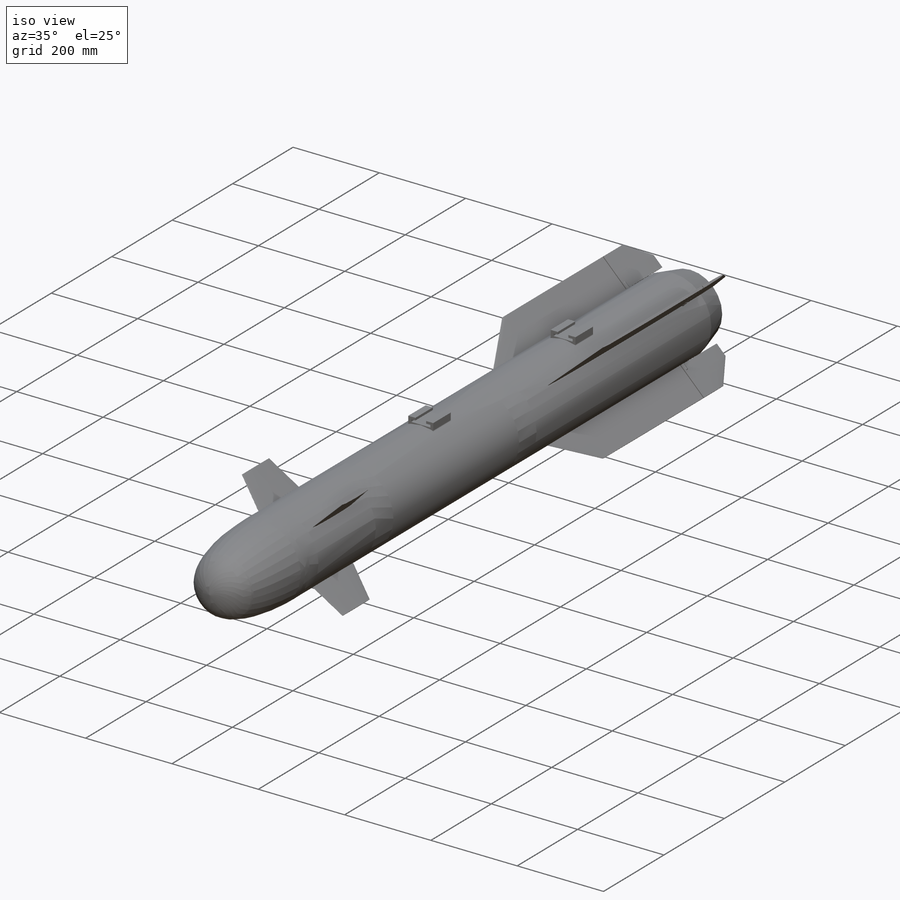
[diagram: iso view]
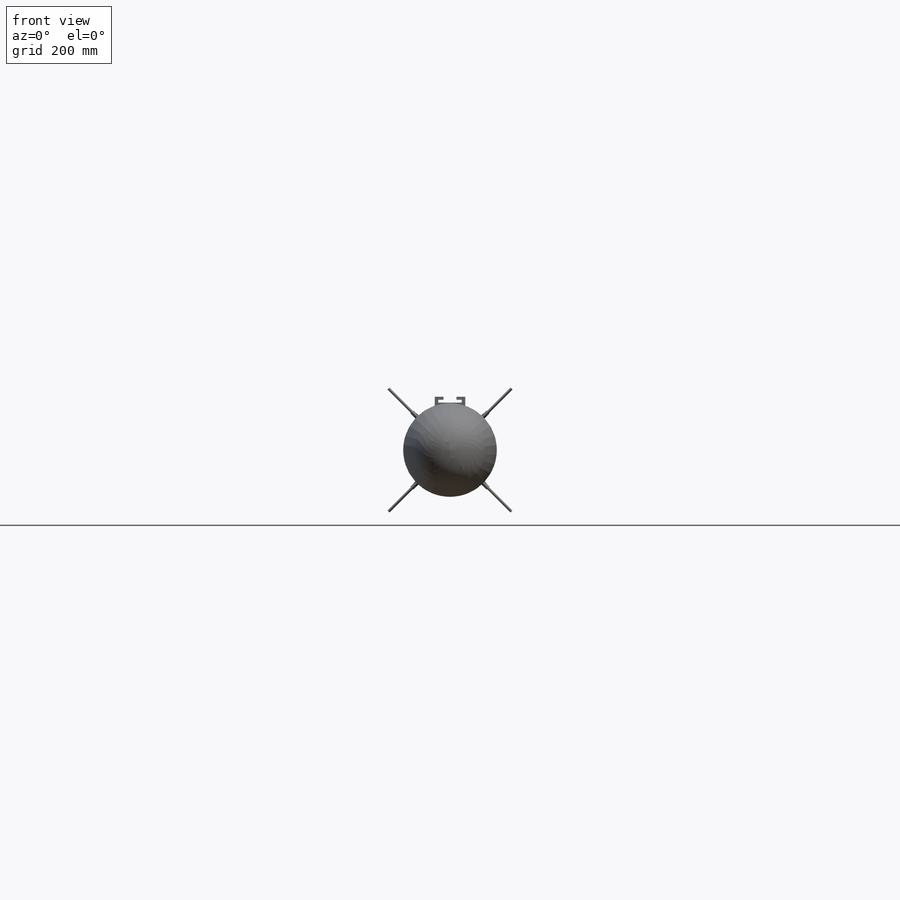
[diagram: front view]
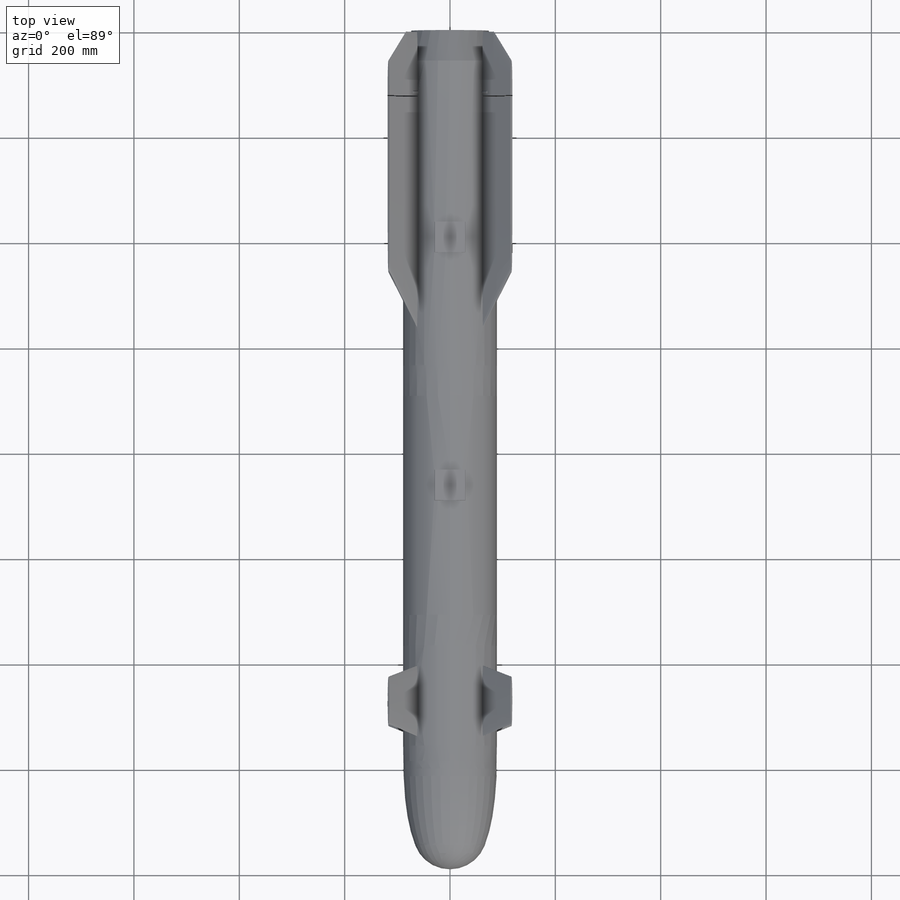
[diagram: top view]
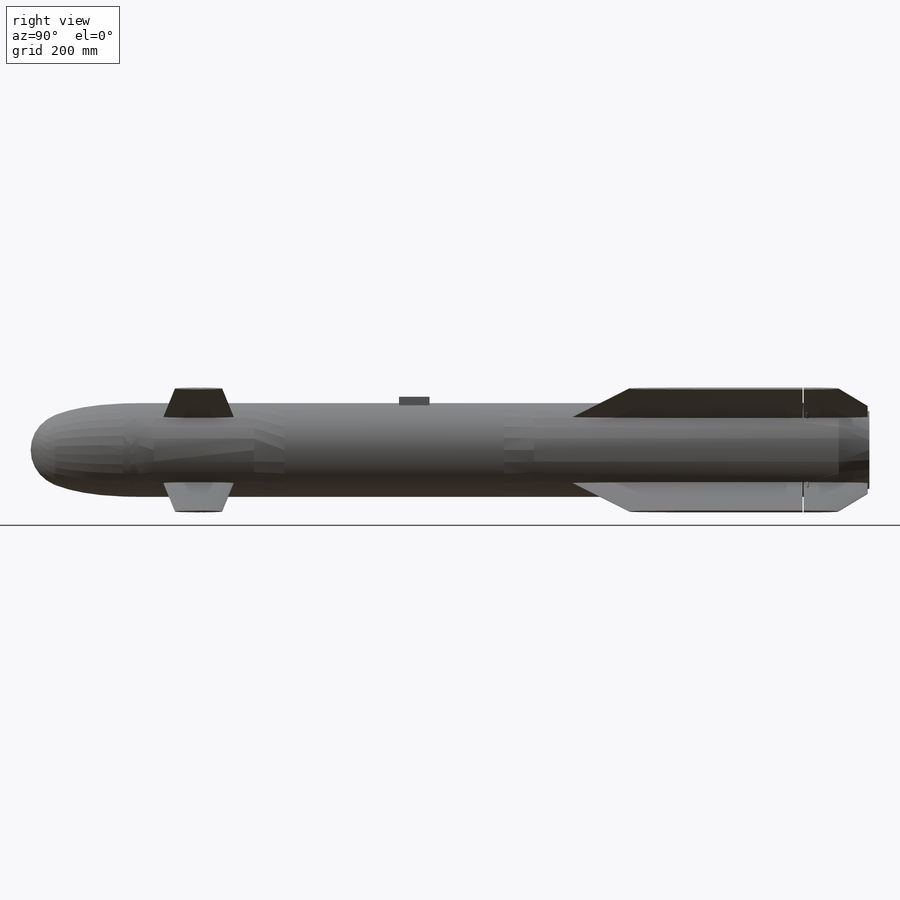
[diagram: right view]
SOLIDWORKS PART (.sldprt)
format: sldprt  version: not decoded by parser v0  size: 1,519,104 bytes
history: native  units: mm
features: sketch x21, plane x5, extrude x3, fillet x3, revolve x2, pattern_circular x2, cut_extrude x2, material x1, dome x1, curve x1 (+16 scaffold rows collapsed)
feature tree (57):
  scaffold x16  (default folders/planes/origin — collapsed)
  material  "Material <not specified>"
  sketch  "Sketch3"  dims[c1.D3=~421.389623mm c1.D1=800.0mm c1.D2=800.0mm c2.D1=88.9mm c3.D1=15.0deg c3.D2=1118.0mm c3.D3=88.9mm c3.D4=440.3228mm c4.D2=50.0mm]
  revolve  "Revolve3"  Angle=360deg
  dome  "Dome3"
  plane  "Plane8"
  plane  "Plane9"  Offset=165mm
  sketch  "Sketch10"  dims[D1=5.0mm D2=22.0mm D3=90.0mm]
  sketch  "Sketch11"
  sketch  "Sketch12"
  sketch  "3DSketch9"
  sketch  "3DSketch10"
  pattern_circular  "CirPattern3"  Count=4 Angle=360deg
  sketch  "Sketch13"  dims[c1.D2=10.0mm c2.D2=10.0mm c2.D1=5.0mm]
  sketch  "Sketch14"  dims[D1=5.0mm]
  curve  "Curve8"
  sketch  "3DSketch12"
  sketch  "3DSketch13"
  plane  "Plane10"  Offset=89mm
  sketch  "Sketch21"  dims[D1=5.0mm]
  sketch  "Sketch22"
  sketch  "Sketch24"  dims[D1=8.0mm]
  plane  "Plane11"  Offset=29mm
  sketch  "Sketch30"
  sketch  "3DSketch20"
  sketch  "3DSketch21"
  extrude  "Boss-Extrude10"  [1 undecoded]
  sketch  "Sketch31"
  extrude  "Boss-Extrude11"  Depth=14mm
  pattern_circular  "CirPattern8"  Count=4 Angle=360deg
  fillet  "Fillet7"  Radius=2mm
  fillet  "Fillet8"  Radius=1mm
  sketch  "Sketch32"  dims[D1=110.0mm]
  cut_extrude  "Cut-Extrude1"  Depth=54mm
  plane  "Plane12"  Offset=101mm
  sketch  "Sketch33"  dims[D1=57.8mm D2=28.9mm D3=57.8mm D4=57.8mm D5=28.9mm D6=57.8mm]
  extrude  "Boss-Extrude12"  [1 undecoded]
  sketch  "Sketch35"  dims[D1=5.5mm D2=5.5mm]
  cut_extrude  "Cut-Extrude2"  Depth=559mm
  fillet  "Fillet9"  Radius=2mm
  sketch  "Sketch36"  dims[D1=58.0mm D2=58.0mm D3=58.0mm]
  revolve  "Split Line5"  [1 undecoded]
decode coverage: 19 of 35 modeling features carry decoded parameters
note: ~ marks probable driven/reference dimensions
note: 3 parameter values undecoded
summary: no parameter record found for 3 features
note: suppression state not decoded; provenance and decode notes live in map.json
